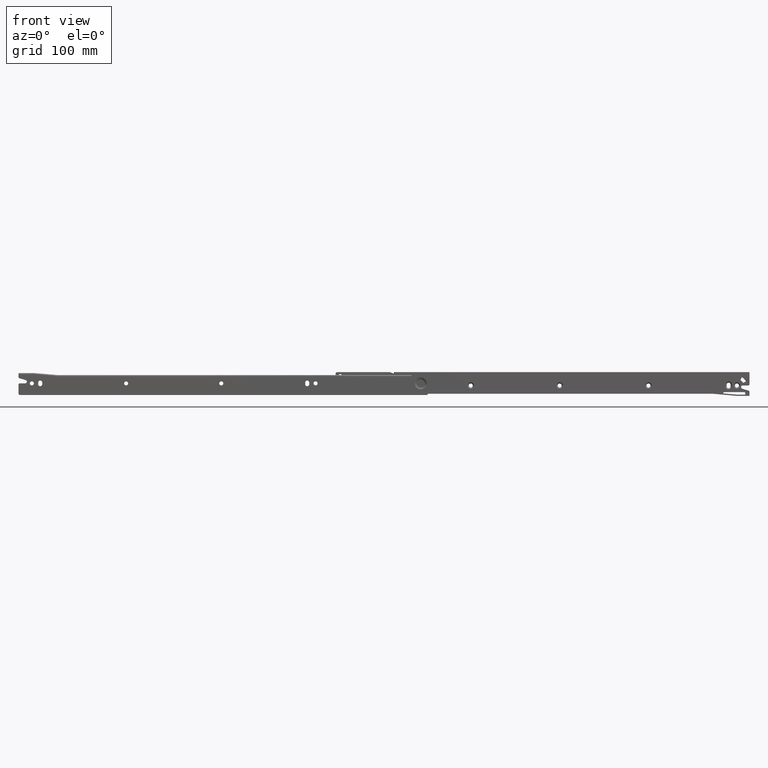
[diagram: clean part render]
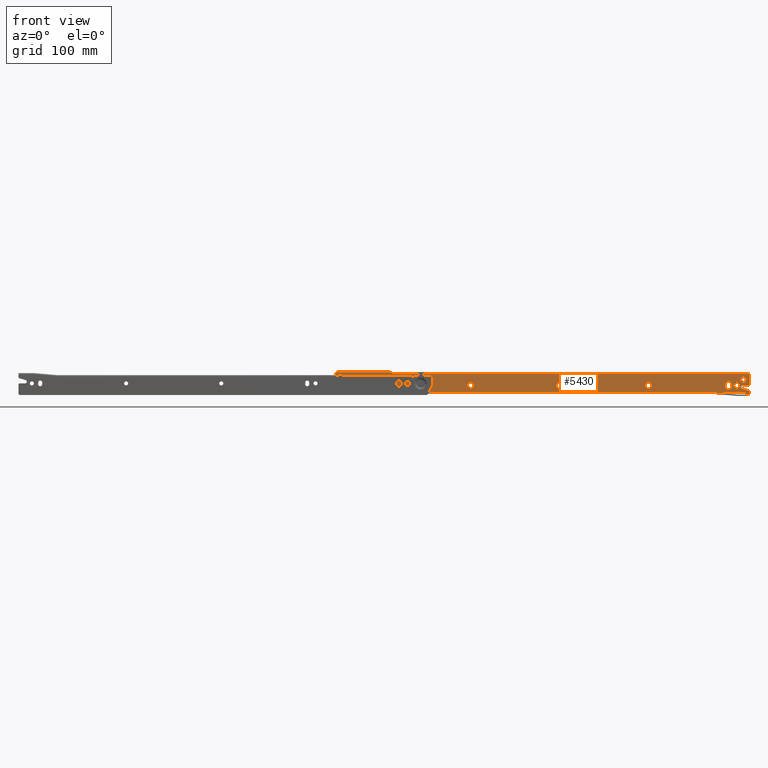
[diagram: same view with one face highlighted and labeled with its STEP entity id]
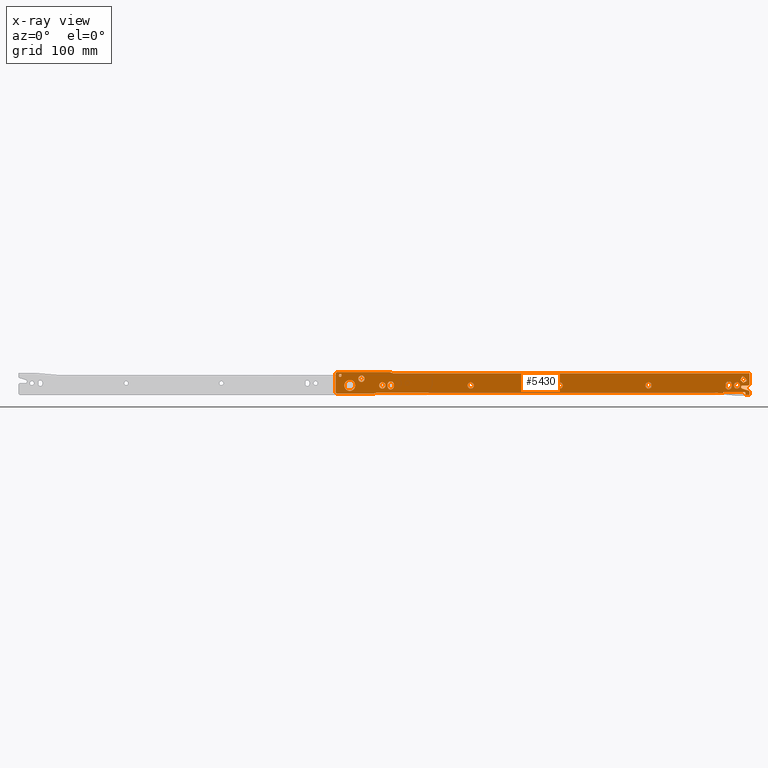
[diagram: x-ray of the same camera — body ghosted, the highlighted face saturated]
A machine part, front view. The second image highlights one B-rep face of the part: STEP entity #5430.
The next image is the same camera in x-ray: the body ghosted, the highlighted face saturated — about 0% of this face is hidden behind the body in this view.
In plain terms, the highlighted face is a freeform B-spline surface patch.
Its self-contained STEP definition (entity closure, byte-faithful):
#738=CARTESIAN_POINT('',(376.279001698154790,10.999999998562380,11.034519981772331));
#739=VERTEX_POINT('',#738);
#745=CARTESIAN_POINT('',(380.0,11.0,7.750000000000000));
#746=VERTEX_POINT('',#745);
#747=CARTESIAN_POINT('',(380.0,11.0,7.750000000000000));
#748=CARTESIAN_POINT('',(376.689880267846830,10.999999999999998,7.750000000000000));
#749=CARTESIAN_POINT('',(376.279001698154840,10.999999998562382,11.034519981772327));
#757=(BOUNDED_CURVE()B_SPLINE_CURVE(2,(#747,#748,#749),.UNSPECIFIED.,.F.,.U.)B_SPLINE_CURVE_WITH_KNOTS((3,3),(0.500000000000000,0.728526070098578),.UNSPECIFIED.)CURVE()GEOMETRIC_REPRESENTATION_ITEM()RATIONAL_B_SPLINE_CURVE((1.0,0.732265054984155,0.954005428468550))REPRESENTATION_ITEM(''));
#758=EDGE_CURVE('',#746,#739,#757,.T.);
#760=CARTESIAN_POINT('',(383.749857212951500,10.999999998259449,11.532724520237350));
#761=VERTEX_POINT('',#760);
#762=CARTESIAN_POINT('',(383.749857212951440,10.999999998259446,11.532724520237348));
#763=CARTESIAN_POINT('',(383.750000000000060,11.000000000000002,11.516362577683099));
#764=CARTESIAN_POINT('',(383.750000000000000,11.0,11.500000000000000));
#765=CARTESIAN_POINT('',(383.750000000000060,11.0,7.750000000000001));
#766=CARTESIAN_POINT('',(380.0,11.0,7.750000000000000));
#774=(BOUNDED_CURVE()B_SPLINE_CURVE(2,(#762,#763,#764,#765,#766),.UNSPECIFIED.,.F.,.U.)B_SPLINE_CURVE_WITH_KNOTS((3,2,3),(0.248460104527813,0.250000000000000,0.500000000000000),.UNSPECIFIED.)CURVE()GEOMETRIC_REPRESENTATION_ITEM()RATIONAL_B_SPLINE_CURVE((0.996414025468606,0.998195900234059,1.0,0.707106781186547,1.0))REPRESENTATION_ITEM(''));
#775=EDGE_CURVE('',#761,#746,#774,.T.);
#855=CARTESIAN_POINT('',(380.0,11.0,15.250000000000000));
#856=VERTEX_POINT('',#855);
#857=CARTESIAN_POINT('',(380.0,11.0,15.250000000000000));
#858=CARTESIAN_POINT('',(383.717417015730180,11.0,15.249999999999998));
#859=CARTESIAN_POINT('',(383.749857212951440,10.999999998259449,11.532724520237352));
#867=(BOUNDED_CURVE()B_SPLINE_CURVE(2,(#857,#858,#859),.UNSPECIFIED.,.F.,.U.)B_SPLINE_CURVE_WITH_KNOTS((3,3),(0.0,0.248460104527813),.UNSPECIFIED.)CURVE()GEOMETRIC_REPRESENTATION_ITEM()RATIONAL_B_SPLINE_CURVE((1.0,0.708910880952489,0.996414025468605))REPRESENTATION_ITEM(''));
#868=EDGE_CURVE('',#856,#761,#867,.T.);
#870=CARTESIAN_POINT('',(376.279001698154840,10.999999998562382,11.034519981772327));
#871=CARTESIAN_POINT('',(376.250000000000060,10.999999999999996,11.266356511361494));
#872=CARTESIAN_POINT('',(376.250000000000110,11.0,11.500000000000000));
#873=CARTESIAN_POINT('',(376.250000000000060,11.0,15.250000000000002));
#874=CARTESIAN_POINT('',(380.0,11.0,15.250000000000000));
#882=(BOUNDED_CURVE()B_SPLINE_CURVE(2,(#870,#871,#872,#873,#874),.UNSPECIFIED.,.F.,.U.)B_SPLINE_CURVE_WITH_KNOTS((3,2,3),(0.728526070098577,0.750000000000000,1.0),.UNSPECIFIED.)CURVE()GEOMETRIC_REPRESENTATION_ITEM()RATIONAL_B_SPLINE_CURVE((0.954005428468548,0.974841726202391,1.0,0.707106781186547,1.0))REPRESENTATION_ITEM(''));
#883=EDGE_CURVE('',#739,#856,#882,.T.);
#924=CARTESIAN_POINT('',(269.779001698154790,10.999999998562361,11.034519981772320));
#925=VERTEX_POINT('',#924);
#931=CARTESIAN_POINT('',(273.500000000000000,11.0,7.750000000000000));
#932=VERTEX_POINT('',#931);
#933=CARTESIAN_POINT('',(273.500000000000000,11.0,7.750000000000000));
#934=CARTESIAN_POINT('',(270.189880267846890,10.999999999999998,7.750000000000000));
#935=CARTESIAN_POINT('',(269.779001698154840,10.999999998562359,11.034519981772323));
#943=(BOUNDED_CURVE()B_SPLINE_CURVE(2,(#933,#934,#935),.UNSPECIFIED.,.F.,.U.)B_SPLINE_CURVE_WITH_KNOTS((3,3),(0.500000000000000,0.728526070098576),.UNSPECIFIED.)CURVE()GEOMETRIC_REPRESENTATION_ITEM()RATIONAL_B_SPLINE_CURVE((1.0,0.732265054984158,0.954005428468545))REPRESENTATION_ITEM(''));
#944=EDGE_CURVE('',#932,#925,#943,.T.);
#946=CARTESIAN_POINT('',(277.249857212951500,10.999999998259460,11.532724520237350));
#947=VERTEX_POINT('',#946);
#948=CARTESIAN_POINT('',(277.249857212951440,10.999999998259458,11.532724520237348));
#949=CARTESIAN_POINT('',(277.250000000000060,11.000000000000002,11.516362577683099));
#950=CARTESIAN_POINT('',(277.250000000000000,11.0,11.500000000000000));
#951=CARTESIAN_POINT('',(277.250000000000000,11.0,7.750000000000001));
#952=CARTESIAN_POINT('',(273.500000000000000,11.0,7.750000000000000));
#960=(BOUNDED_CURVE()B_SPLINE_CURVE(2,(#948,#949,#950,#951,#952),.UNSPECIFIED.,.F.,.U.)B_SPLINE_CURVE_WITH_KNOTS((3,2,3),(0.248460104527813,0.250000000000000,0.500000000000000),.UNSPECIFIED.)CURVE()GEOMETRIC_REPRESENTATION_ITEM()RATIONAL_B_SPLINE_CURVE((0.996414025468606,0.998195900234059,1.0,0.707106781186547,1.0))REPRESENTATION_ITEM(''));
#961=EDGE_CURVE('',#947,#932,#960,.T.);
#1041=CARTESIAN_POINT('',(273.500000000000000,11.0,15.250000000000000));
#1042=VERTEX_POINT('',#1041);
#1043=CARTESIAN_POINT('',(273.500000000000000,11.0,15.250000000000000));
#1044=CARTESIAN_POINT('',(277.217417015730230,11.0,15.249999999999998));
#1045=CARTESIAN_POINT('',(277.249857212951500,10.999999998259460,11.532724520237352));
#1053=(BOUNDED_CURVE()B_SPLINE_CURVE(2,(#1043,#1044,#1045),.UNSPECIFIED.,.F.,.U.)B_SPLINE_CURVE_WITH_KNOTS((3,3),(0.0,0.248460104527813),.UNSPECIFIED.)CURVE()GEOMETRIC_REPRESENTATION_ITEM()RATIONAL_B_SPLINE_CURVE((1.0,0.708910880952489,0.996414025468605))REPRESENTATION_ITEM(''));
#1054=EDGE_CURVE('',#1042,#947,#1053,.T.);
#1056=CARTESIAN_POINT('',(269.779001698154790,10.999999998562361,11.034519981772316));
#1057=CARTESIAN_POINT('',(269.750000000000000,11.000000000000002,11.266356511361490));
#1058=CARTESIAN_POINT('',(269.750000000000110,11.0,11.500000000000000));
#1059=CARTESIAN_POINT('',(269.750000000000060,11.0,15.250000000000002));
#1060=CARTESIAN_POINT('',(273.500000000000000,11.0,15.250000000000000));
#1068=(BOUNDED_CURVE()B_SPLINE_CURVE(2,(#1056,#1057,#1058,#1059,#1060),.UNSPECIFIED.,.F.,.U.)B_SPLINE_CURVE_WITH_KNOTS((3,2,3),(0.728526070098577,0.750000000000000,1.0),.UNSPECIFIED.)CURVE()GEOMETRIC_REPRESENTATION_ITEM()RATIONAL_B_SPLINE_CURVE((0.954005428468547,0.974841726202391,1.0,0.707106781186547,1.0))REPRESENTATION_ITEM(''));
#1069=EDGE_CURVE('',#925,#1042,#1068,.T.);
#1110=CARTESIAN_POINT('',(163.279001698154790,10.999999998562350,11.034519981772320));
#1111=VERTEX_POINT('',#1110);
#1117=CARTESIAN_POINT('',(167.0,11.0,7.750000000000000));
#1118=VERTEX_POINT('',#1117);
#1119=CARTESIAN_POINT('',(167.0,11.0,7.750000000000000));
#1120=CARTESIAN_POINT('',(163.689880267846890,10.999999999999998,7.750000000000000));
#1121=CARTESIAN_POINT('',(163.279001698154790,10.999999998562346,11.034519981772313));
#1129=(BOUNDED_CURVE()B_SPLINE_CURVE(2,(#1119,#1120,#1121),.UNSPECIFIED.,.F.,.U.)B_SPLINE_CURVE_WITH_KNOTS((3,3),(0.500000000000000,0.728526070098576),.UNSPECIFIED.)CURVE()GEOMETRIC_REPRESENTATION_ITEM()RATIONAL_B_SPLINE_CURVE((1.0,0.732265054984158,0.954005428468545))REPRESENTATION_ITEM(''));
#1130=EDGE_CURVE('',#1118,#1111,#1129,.T.);
#1132=CARTESIAN_POINT('',(170.749857212951500,10.999999998259449,11.532724520237350));
#1133=VERTEX_POINT('',#1132);
#1134=CARTESIAN_POINT('',(170.749857212951470,10.999999998259447,11.532724520237348));
#1135=CARTESIAN_POINT('',(170.750000000000030,11.000000000000002,11.516362577683099));
#1136=CARTESIAN_POINT('',(170.750000000000000,11.0,11.500000000000000));
#1137=CARTESIAN_POINT('',(170.750000000000030,11.0,7.750000000000001));
#1138=CARTESIAN_POINT('',(167.0,11.0,7.750000000000000));
#1146=(BOUNDED_CURVE()B_SPLINE_CURVE(2,(#1134,#1135,#1136,#1137,#1138),.UNSPECIFIED.,.F.,.U.)B_SPLINE_CURVE_WITH_KNOTS((3,2,3),(0.248460104527813,0.250000000000000,0.500000000000000),.UNSPECIFIED.)CURVE()GEOMETRIC_REPRESENTATION_ITEM()RATIONAL_B_SPLINE_CURVE((0.996414025468606,0.998195900234059,1.0,0.707106781186547,1.0))REPRESENTATION_ITEM(''));
#1147=EDGE_CURVE('',#1133,#1118,#1146,.T.);
#1227=CARTESIAN_POINT('',(167.0,11.0,15.250000000000000));
#1228=VERTEX_POINT('',#1227);
#1229=CARTESIAN_POINT('',(167.0,11.0,15.250000000000000));
#1230=CARTESIAN_POINT('',(170.717417015730120,11.0,15.249999999999998));
#1231=CARTESIAN_POINT('',(170.749857212951530,10.999999998259449,11.532724520237352));
#1239=(BOUNDED_CURVE()B_SPLINE_CURVE(2,(#1229,#1230,#1231),.UNSPECIFIED.,.F.,.U.)B_SPLINE_CURVE_WITH_KNOTS((3,3),(0.0,0.248460104527813),.UNSPECIFIED.)CURVE()GEOMETRIC_REPRESENTATION_ITEM()RATIONAL_B_SPLINE_CURVE((1.0,0.708910880952489,0.996414025468605))REPRESENTATION_ITEM(''));
#1240=EDGE_CURVE('',#1228,#1133,#1239,.T.);
#1242=CARTESIAN_POINT('',(163.279001698154810,10.999999998562346,11.034519981772323));
#1243=CARTESIAN_POINT('',(163.249999999999970,11.000000000000005,11.266356511361485));
#1244=CARTESIAN_POINT('',(163.250000000000000,11.0,11.500000000000000));
#1245=CARTESIAN_POINT('',(163.250000000000060,11.0,15.250000000000002));
#1246=CARTESIAN_POINT('',(167.0,11.0,15.250000000000000));
#1254=(BOUNDED_CURVE()B_SPLINE_CURVE(2,(#1242,#1243,#1244,#1245,#1246),.UNSPECIFIED.,.F.,.U.)B_SPLINE_CURVE_WITH_KNOTS((3,2,3),(0.728526070098576,0.750000000000000,1.0),.UNSPECIFIED.)CURVE()GEOMETRIC_REPRESENTATION_ITEM()RATIONAL_B_SPLINE_CURVE((0.954005428468546,0.974841726202390,1.0,0.707106781186547,1.0))REPRESENTATION_ITEM(''));
#1255=EDGE_CURVE('',#1111,#1228,#1254,.T.);
#1552=CARTESIAN_POINT('',(15.512123809849671,11.000000000751140,11.103184487389870));
#1553=VERTEX_POINT('',#1552);
#1559=CARTESIAN_POINT('',(22.0,11.0,4.999999999999800));
#1560=VERTEX_POINT('',#1559);
#1561=CARTESIAN_POINT('',(22.0,11.0,4.999999999999800));
#1562=CARTESIAN_POINT('',(15.885410575664876,11.000000000000002,4.999999999999801));
#1563=CARTESIAN_POINT('',(15.512123809849671,11.000000000751143,11.103184487389873));
#1571=(BOUNDED_CURVE()B_SPLINE_CURVE(2,(#1561,#1562,#1563),.UNSPECIFIED.,.F.,.U.)B_SPLINE_CURVE_WITH_KNOTS((3,3),(0.500000000000000,0.739332961944756),.UNSPECIFIED.)CURVE()GEOMETRIC_REPRESENTATION_ITEM()RATIONAL_B_SPLINE_CURVE((1.0,0.719603993631372,0.976072041036219))REPRESENTATION_ITEM(''));
#1572=EDGE_CURVE('',#1560,#1553,#1571,.T.);
#1574=CARTESIAN_POINT('',(22.0,11.0,18.000000000000199));
#1575=VERTEX_POINT('',#1574);
#1576=CARTESIAN_POINT('',(22.0,11.0,18.000000000000199));
#1577=CARTESIAN_POINT('',(28.500000000000206,11.0,18.000000000000206));
#1578=CARTESIAN_POINT('',(28.500000000000199,11.0,11.500000000000000));
#1579=CARTESIAN_POINT('',(28.500000000000206,11.0,4.999999999999802));
#1580=CARTESIAN_POINT('',(22.0,11.0,4.999999999999800));
#1588=(BOUNDED_CURVE()B_SPLINE_CURVE(2,(#1576,#1577,#1578,#1579,#1580),.UNSPECIFIED.,.F.,.U.)B_SPLINE_CURVE_WITH_KNOTS((3,2,3),(0.0,0.250000000000000,0.500000000000000),.UNSPECIFIED.)CURVE()GEOMETRIC_REPRESENTATION_ITEM()RATIONAL_B_SPLINE_CURVE((1.0,0.707106781186547,1.0,0.707106781186547,1.0))REPRESENTATION_ITEM(''));
#1589=EDGE_CURVE('',#1575,#1560,#1588,.T.);
#1591=CARTESIAN_POINT('',(19.714483159913559,11.000000000627940,17.584933260262371));
#1592=VERTEX_POINT('',#1591);
#1593=CARTESIAN_POINT('',(19.714483159913556,11.000000000627942,17.584933260262368));
#1594=CARTESIAN_POINT('',(20.819551983591868,11.000000000000004,18.000000000000206));
#1595=CARTESIAN_POINT('',(22.0,11.0,18.000000000000199));
#1603=(BOUNDED_CURVE()B_SPLINE_CURVE(2,(#1593,#1594,#1595),.UNSPECIFIED.,.F.,.U.)B_SPLINE_CURVE_WITH_KNOTS((3,3),(0.940284170570788,1.0),.UNSPECIFIED.)CURVE()GEOMETRIC_REPRESENTATION_ITEM()RATIONAL_B_SPLINE_CURVE((0.893499554234223,0.930038554017452,1.0))REPRESENTATION_ITEM(''));
#1604=EDGE_CURVE('',#1592,#1575,#1603,.T.);
#1644=CARTESIAN_POINT('',(15.512123809849678,11.000000000751140,11.103184487389870));
#1645=CARTESIAN_POINT('',(15.499999999999799,11.000000000000004,11.301407032955806));
#1646=CARTESIAN_POINT('',(15.499999999999799,11.0,11.500000000000000));
#1647=CARTESIAN_POINT('',(15.499999999999805,11.000000000000002,16.001962362023672));
#1648=CARTESIAN_POINT('',(19.714483159913559,11.000000000627940,17.584933260262371));
#1656=(BOUNDED_CURVE()B_SPLINE_CURVE(2,(#1644,#1645,#1646,#1647,#1648),.UNSPECIFIED.,.F.,.U.)B_SPLINE_CURVE_WITH_KNOTS((3,2,3),(0.739332961944756,0.750000000000000,0.940284170570788),.UNSPECIFIED.)CURVE()GEOMETRIC_REPRESENTATION_ITEM()RATIONAL_B_SPLINE_CURVE((0.976072041036219,0.987502787555176,1.0,0.777068227169095,0.893499554234223))REPRESENTATION_ITEM(''));
#1657=EDGE_CURVE('',#1553,#1592,#1656,.T.);
#1698=CARTESIAN_POINT('',(57.279001698154772,10.999999998562350,11.034519981772320));
#1699=VERTEX_POINT('',#1698);
#1705=CARTESIAN_POINT('',(61.0,11.0,7.750000000000000));
#1706=VERTEX_POINT('',#1705);
#1707=CARTESIAN_POINT('',(61.0,11.0,7.750000000000000));
#1708=CARTESIAN_POINT('',(57.689880267846910,10.999999999999998,7.750000000000000));
#1709=CARTESIAN_POINT('',(57.279001698154779,10.999999998562346,11.034519981772313));
#1717=(BOUNDED_CURVE()B_SPLINE_CURVE(2,(#1707,#1708,#1709),.UNSPECIFIED.,.F.,.U.)B_SPLINE_CURVE_WITH_KNOTS((3,3),(0.500000000000000,0.728526070098576),.UNSPECIFIED.)CURVE()GEOMETRIC_REPRESENTATION_ITEM()RATIONAL_B_SPLINE_CURVE((1.0,0.732265054984158,0.954005428468545))REPRESENTATION_ITEM(''));
#1718=EDGE_CURVE('',#1706,#1699,#1717,.T.);
#1720=CARTESIAN_POINT('',(64.749857212951454,10.999999998259449,11.532724520237350));
#1721=VERTEX_POINT('',#1720);
#1722=CARTESIAN_POINT('',(64.749857212951454,10.999999998259449,11.532724520237352));
#1723=CARTESIAN_POINT('',(64.750000000000000,11.000000000000002,11.516362577683100));
#1724=CARTESIAN_POINT('',(64.750000000000000,11.0,11.500000000000000));
#1725=CARTESIAN_POINT('',(64.750000000000000,11.0,7.750000000000001));
#1726=CARTESIAN_POINT('',(61.0,11.0,7.750000000000000));
#1734=(BOUNDED_CURVE()B_SPLINE_CURVE(2,(#1722,#1723,#1724,#1725,#1726),.UNSPECIFIED.,.F.,.U.)B_SPLINE_CURVE_WITH_KNOTS((3,2,3),(0.248460104527812,0.250000000000000,0.500000000000000),.UNSPECIFIED.)CURVE()GEOMETRIC_REPRESENTATION_ITEM()RATIONAL_B_SPLINE_CURVE((0.996414025468605,0.998195900234059,1.0,0.707106781186547,1.0))REPRESENTATION_ITEM(''));
#1735=EDGE_CURVE('',#1721,#1706,#1734,.T.);
#1815=CARTESIAN_POINT('',(61.0,11.0,15.250000000000000));
#1816=VERTEX_POINT('',#1815);
#1817=CARTESIAN_POINT('',(61.0,11.0,15.250000000000000));
#1818=CARTESIAN_POINT('',(64.717417015730135,11.0,15.249999999999996));
#1819=CARTESIAN_POINT('',(64.749857212951454,10.999999998259453,11.532724520237354));
#1827=(BOUNDED_CURVE()B_SPLINE_CURVE(2,(#1817,#1818,#1819),.UNSPECIFIED.,.F.,.U.)B_SPLINE_CURVE_WITH_KNOTS((3,3),(0.0,0.248460104527812),.UNSPECIFIED.)CURVE()GEOMETRIC_REPRESENTATION_ITEM()RATIONAL_B_SPLINE_CURVE((1.0,0.708910880952489,0.996414025468605))REPRESENTATION_ITEM(''));
#1828=EDGE_CURVE('',#1816,#1721,#1827,.T.);
#1830=CARTESIAN_POINT('',(57.279001698154772,10.999999998562345,11.034519981772322));
#1831=CARTESIAN_POINT('',(57.249999999999993,11.000000000000005,11.266356511361483));
#1832=CARTESIAN_POINT('',(57.249999999999993,11.0,11.500000000000000));
#1833=CARTESIAN_POINT('',(57.249999999999993,11.0,15.250000000000002));
#1834=CARTESIAN_POINT('',(61.0,11.0,15.250000000000000));
#1842=(BOUNDED_CURVE()B_SPLINE_CURVE(2,(#1830,#1831,#1832,#1833,#1834),.UNSPECIFIED.,.F.,.U.)B_SPLINE_CURVE_WITH_KNOTS((3,2,3),(0.728526070098577,0.750000000000000,1.0),.UNSPECIFIED.)CURVE()GEOMETRIC_REPRESENTATION_ITEM()RATIONAL_B_SPLINE_CURVE((0.954005428468546,0.974841726202391,1.0,0.707106781186547,1.0))REPRESENTATION_ITEM(''));
#1843=EDGE_CURVE('',#1699,#1816,#1842,.T.);
#1884=CARTESIAN_POINT('',(32.279001698154772,10.999999998562350,19.034519981772320));
#1885=VERTEX_POINT('',#1884);
#1891=CARTESIAN_POINT('',(36.0,11.0,15.750000000000000));
#1892=VERTEX_POINT('',#1891);
#1893=CARTESIAN_POINT('',(36.0,11.0,15.750000000000000));
#1894=CARTESIAN_POINT('',(32.689880267846910,10.999999999999998,15.750000000000009));
#1895=CARTESIAN_POINT('',(32.279001698154779,10.999999998562359,19.034519981772320));
#1903=(BOUNDED_CURVE()B_SPLINE_CURVE(2,(#1893,#1894,#1895),.UNSPECIFIED.,.F.,.U.)B_SPLINE_CURVE_WITH_KNOTS((3,3),(0.500000000000000,0.728526070098576),.UNSPECIFIED.)CURVE()GEOMETRIC_REPRESENTATION_ITEM()RATIONAL_B_SPLINE_CURVE((1.0,0.732265054984158,0.954005428468545))REPRESENTATION_ITEM(''));
#1904=EDGE_CURVE('',#1892,#1885,#1903,.T.);
#1906=CARTESIAN_POINT('',(39.749857212951447,10.999999998259460,19.532724520237348));
#1907=VERTEX_POINT('',#1906);
#1908=CARTESIAN_POINT('',(39.749857212951454,10.999999998259460,19.532724520237348));
#1909=CARTESIAN_POINT('',(39.750000000000000,11.000000000000002,19.516362577683100));
#1910=CARTESIAN_POINT('',(39.749999999999993,11.0,19.500000000000000));
#1911=CARTESIAN_POINT('',(39.750000000000000,11.0,15.749999999999995));
#1912=CARTESIAN_POINT('',(36.0,11.0,15.750000000000000));
#1920=(BOUNDED_CURVE()B_SPLINE_CURVE(2,(#1908,#1909,#1910,#1911,#1912),.UNSPECIFIED.,.F.,.U.)B_SPLINE_CURVE_WITH_KNOTS((3,2,3),(0.248460104527813,0.250000000000000,0.500000000000000),.UNSPECIFIED.)CURVE()GEOMETRIC_REPRESENTATION_ITEM()RATIONAL_B_SPLINE_CURVE((0.996414025468605,0.998195900234059,1.0,0.707106781186547,1.0))REPRESENTATION_ITEM(''));
#1921=EDGE_CURVE('',#1907,#1892,#1920,.T.);
#2001=CARTESIAN_POINT('',(36.0,11.0,23.250000000000000));
#2002=VERTEX_POINT('',#2001);
#2003=CARTESIAN_POINT('',(36.0,11.0,23.250000000000000));
#2004=CARTESIAN_POINT('',(39.717417015730121,11.000000000000002,23.250000000000000));
#2005=CARTESIAN_POINT('',(39.749857212951454,10.999999998259460,19.532724520237348));
#2013=(BOUNDED_CURVE()B_SPLINE_CURVE(2,(#2003,#2004,#2005),.UNSPECIFIED.,.F.,.U.)B_SPLINE_CURVE_WITH_KNOTS((3,3),(0.0,0.248460104527812),.UNSPECIFIED.)CURVE()GEOMETRIC_REPRESENTATION_ITEM()RATIONAL_B_SPLINE_CURVE((1.0,0.708910880952489,0.996414025468605))REPRESENTATION_ITEM(''));
#2014=EDGE_CURVE('',#2002,#1907,#2013,.T.);
#2016=CARTESIAN_POINT('',(32.279001698154772,10.999999998562357,19.034519981772320));
#2017=CARTESIAN_POINT('',(32.249999999999993,11.000000000000005,19.266356511361490));
#2018=CARTESIAN_POINT('',(32.250000000000000,11.0,19.500000000000000));
#2019=CARTESIAN_POINT('',(32.250000000000007,11.0,23.250000000000004));
#2020=CARTESIAN_POINT('',(36.0,11.0,23.250000000000000));
#2028=(BOUNDED_CURVE()B_SPLINE_CURVE(2,(#2016,#2017,#2018,#2019,#2020),.UNSPECIFIED.,.F.,.U.)B_SPLINE_CURVE_WITH_KNOTS((3,2,3),(0.728526070098577,0.750000000000000,1.0),.UNSPECIFIED.)CURVE()GEOMETRIC_REPRESENTATION_ITEM()RATIONAL_B_SPLINE_CURVE((0.954005428468546,0.974841726202391,1.0,0.707106781186547,1.0))REPRESENTATION_ITEM(''));
#2029=EDGE_CURVE('',#1885,#2002,#2028,.T.);
#2076=CARTESIAN_POINT('',(8.812233329449512,11.0,23.656559915578669));
#2077=VERTEX_POINT('',#2076);
#2083=CARTESIAN_POINT('',(10.550000000000001,11.0,21.699999999999999));
#2084=VERTEX_POINT('',#2083);
#2085=CARTESIAN_POINT('',(8.812233329449512,11.000000000000002,23.656559915578672));
#2086=CARTESIAN_POINT('',(8.799999999999999,11.000000000000005,23.553642214372292));
#2087=CARTESIAN_POINT('',(8.800000000000001,11.0,23.449999999999999));
#2088=CARTESIAN_POINT('',(8.800000000000001,11.0,21.699999999999999));
#2089=CARTESIAN_POINT('',(10.550000000000001,11.0,21.699999999999999));
#2097=(BOUNDED_CURVE()B_SPLINE_CURVE(2,(#2085,#2086,#2087,#2088,#2089),.UNSPECIFIED.,.F.,.U.)B_SPLINE_CURVE_WITH_KNOTS((3,2,3),(0.229562472556857,0.250000000000000,0.500000000000000),.UNSPECIFIED.)CURVE()GEOMETRIC_REPRESENTATION_ITEM()RATIONAL_B_SPLINE_CURVE((0.956026752308623,0.976055947210358,1.0,0.707106781186547,1.0))REPRESENTATION_ITEM(''));
#2098=EDGE_CURVE('',#2077,#2084,#2097,.T.);
#2100=CARTESIAN_POINT('',(12.296735897237699,11.0,23.343165055804629));
#2101=VERTEX_POINT('',#2100);
#2102=CARTESIAN_POINT('',(10.550000000000001,11.0,21.699999999999999));
#2103=CARTESIAN_POINT('',(12.196235617067275,11.000000000000002,21.700000000000003));
#2104=CARTESIAN_POINT('',(12.296735897237697,11.000000000000005,23.343165055804633));
#2112=(BOUNDED_CURVE()B_SPLINE_CURVE(2,(#2102,#2103,#2104),.UNSPECIFIED.,.F.,.U.)B_SPLINE_CURVE_WITH_KNOTS((3,3),(0.500000000000000,0.739332962240117),.UNSPECIFIED.)CURVE()GEOMETRIC_REPRESENTATION_ITEM()RATIONAL_B_SPLINE_CURVE((1.0,0.719603993285334,0.976072041669235))REPRESENTATION_ITEM(''));
#2113=EDGE_CURVE('',#2084,#2101,#2112,.T.);
#2187=CARTESIAN_POINT('',(10.550000000000001,11.0,25.199999999999999));
#2188=VERTEX_POINT('',#2187);
#2189=CARTESIAN_POINT('',(12.296735897237701,11.0,23.343165055804633));
#2190=CARTESIAN_POINT('',(12.300000000000001,11.0,23.396532664218075));
#2191=CARTESIAN_POINT('',(12.300000000000001,11.0,23.449999999999999));
#2192=CARTESIAN_POINT('',(12.300000000000002,11.0,25.200000000000006));
#2193=CARTESIAN_POINT('',(10.550000000000001,11.0,25.199999999999999));
#2201=(BOUNDED_CURVE()B_SPLINE_CURVE(2,(#2189,#2190,#2191,#2192,#2193),.UNSPECIFIED.,.F.,.U.)B_SPLINE_CURVE_WITH_KNOTS((3,2,3),(0.739332962240118,0.750000000000000,1.0),.UNSPECIFIED.)CURVE()GEOMETRIC_REPRESENTATION_ITEM()RATIONAL_B_SPLINE_CURVE((0.976072041669235,0.987502787901214,1.0,0.707106781186547,1.0))REPRESENTATION_ITEM(''));
#2202=EDGE_CURVE('',#2101,#2188,#2201,.T.);
#2204=CARTESIAN_POINT('',(10.550000000000001,11.0,25.199999999999999));
#2205=CARTESIAN_POINT('',(8.995694588465053,11.0,25.200000000000006));
#2206=CARTESIAN_POINT('',(8.812233329449514,10.999999999999998,23.656559915578676));
#2214=(BOUNDED_CURVE()B_SPLINE_CURVE(2,(#2204,#2205,#2206),.UNSPECIFIED.,.F.,.U.)B_SPLINE_CURVE_WITH_KNOTS((3,3),(0.0,0.229562472556857),.UNSPECIFIED.)CURVE()GEOMETRIC_REPRESENTATION_ITEM()RATIONAL_B_SPLINE_CURVE((1.0,0.731050833976190,0.956026752308623))REPRESENTATION_ITEM(''));
#2215=EDGE_CURVE('',#2188,#2077,#2214,.T.);
#2256=CARTESIAN_POINT('',(482.279001698154670,10.999999998562339,11.034519981772320));
#2257=VERTEX_POINT('',#2256);
#2263=CARTESIAN_POINT('',(486.0,11.0,7.750000000000000));
#2264=VERTEX_POINT('',#2263);
#2265=CARTESIAN_POINT('',(486.0,11.0,7.750000000000000));
#2266=CARTESIAN_POINT('',(482.689880267846890,10.999999999999998,7.750000000000000));
#2267=CARTESIAN_POINT('',(482.279001698154790,10.999999998562338,11.034519981772323));
#2275=(BOUNDED_CURVE()B_SPLINE_CURVE(2,(#2265,#2266,#2267),.UNSPECIFIED.,.F.,.U.)B_SPLINE_CURVE_WITH_KNOTS((3,3),(0.500000000000000,0.728526070098576),.UNSPECIFIED.)CURVE()GEOMETRIC_REPRESENTATION_ITEM()RATIONAL_B_SPLINE_CURVE((1.0,0.732265054984158,0.954005428468545))REPRESENTATION_ITEM(''));
#2276=EDGE_CURVE('',#2264,#2257,#2275,.T.);
#2278=CARTESIAN_POINT('',(489.749857212951380,10.999999998259460,11.532724520237350));
#2279=VERTEX_POINT('',#2278);
#2280=CARTESIAN_POINT('',(489.749857212951440,10.999999998259465,11.532724520237348));
#2281=CARTESIAN_POINT('',(489.750000000000000,11.000000000000002,11.516362577683099));
#2282=CARTESIAN_POINT('',(489.749999999999890,11.0,11.500000000000000));
#2283=CARTESIAN_POINT('',(489.749999999999940,11.0,7.750000000000001));
#2284=CARTESIAN_POINT('',(486.0,11.0,7.750000000000000));
#2292=(BOUNDED_CURVE()B_SPLINE_CURVE(2,(#2280,#2281,#2282,#2283,#2284),.UNSPECIFIED.,.F.,.U.)B_SPLINE_CURVE_WITH_KNOTS((3,2,3),(0.248460104527813,0.250000000000000,0.500000000000000),.UNSPECIFIED.)CURVE()GEOMETRIC_REPRESENTATION_ITEM()RATIONAL_B_SPLINE_CURVE((0.996414025468606,0.998195900234059,1.0,0.707106781186547,1.0))REPRESENTATION_ITEM(''));
#2293=EDGE_CURVE('',#2279,#2264,#2292,.T.);
#2373=CARTESIAN_POINT('',(486.0,11.0,15.250000000000000));
#2374=VERTEX_POINT('',#2373);
#2375=CARTESIAN_POINT('',(486.0,11.0,15.250000000000000));
#2376=CARTESIAN_POINT('',(489.717417015730060,11.0,15.249999999999998));
#2377=CARTESIAN_POINT('',(489.749857212951500,10.999999998259460,11.532724520237352));
#2385=(BOUNDED_CURVE()B_SPLINE_CURVE(2,(#2375,#2376,#2377),.UNSPECIFIED.,.F.,.U.)B_SPLINE_CURVE_WITH_KNOTS((3,3),(0.0,0.248460104527813),.UNSPECIFIED.)CURVE()GEOMETRIC_REPRESENTATION_ITEM()RATIONAL_B_SPLINE_CURVE((1.0,0.708910880952489,0.996414025468605))REPRESENTATION_ITEM(''));
#2386=EDGE_CURVE('',#2374,#2279,#2385,.T.);
#2388=CARTESIAN_POINT('',(482.279001698154670,10.999999998562345,11.034519981772322));
#2389=CARTESIAN_POINT('',(482.250000000000000,11.000000000000005,11.266356511361483));
#2390=CARTESIAN_POINT('',(482.250000000000000,11.0,11.500000000000000));
#2391=CARTESIAN_POINT('',(482.249999999999940,11.0,15.250000000000002));
#2392=CARTESIAN_POINT('',(486.0,11.0,15.250000000000000));
#2400=(BOUNDED_CURVE()B_SPLINE_CURVE(2,(#2388,#2389,#2390,#2391,#2392),.UNSPECIFIED.,.F.,.U.)B_SPLINE_CURVE_WITH_KNOTS((3,2,3),(0.728526070098577,0.750000000000000,1.0),.UNSPECIFIED.)CURVE()GEOMETRIC_REPRESENTATION_ITEM()RATIONAL_B_SPLINE_CURVE((0.954005428468546,0.974841726202391,1.0,0.707106781186547,1.0))REPRESENTATION_ITEM(''));
#2401=EDGE_CURVE('',#2257,#2374,#2400,.T.);
#2928=CARTESIAN_POINT('',(67.250000000000000,11.0,10.500000000000000));
#2929=VERTEX_POINT('',#2928);
#2944=CARTESIAN_POINT('',(67.250000000000000,11.0,12.500000000000000));
#2945=VERTEX_POINT('',#2944);
#2951=CARTESIAN_POINT('',(67.250000000000000,11.0,10.500000000000000));
#2952=CARTESIAN_POINT('',(67.250000000000000,11.0,12.500000000000000));
#2953=QUASI_UNIFORM_CURVE('',1,(#2951,#2952),.UNSPECIFIED.,.F.,.U.);
#2954=EDGE_CURVE('',#2929,#2945,#2953,.T.);
#2979=CARTESIAN_POINT('',(74.750000000000000,11.0,12.500000000000000));
#2980=VERTEX_POINT('',#2979);
#2986=CARTESIAN_POINT('',(67.249999999999986,11.0,12.500000000000000));
#2987=CARTESIAN_POINT('',(67.249999999999986,11.0,16.250000000000004));
#2988=CARTESIAN_POINT('',(71.0,11.0,16.250000000000000));
#2989=CARTESIAN_POINT('',(74.750000000000000,11.0,16.250000000000004));
#2990=CARTESIAN_POINT('',(74.750000000000000,11.0,12.500000000000000));
#2998=(BOUNDED_CURVE()B_SPLINE_CURVE(2,(#2986,#2987,#2988,#2989,#2990),.UNSPECIFIED.,.F.,.U.)B_SPLINE_CURVE_WITH_KNOTS((3,2,3),(0.0,0.500000000000000,1.0),.UNSPECIFIED.)CURVE()GEOMETRIC_REPRESENTATION_ITEM()RATIONAL_B_SPLINE_CURVE((1.0,0.707106781186547,1.0,0.707106781186547,1.0))REPRESENTATION_ITEM(''));
#2999=EDGE_CURVE('',#2945,#2980,#2998,.T.);
#3038=CARTESIAN_POINT('',(74.750000000000000,11.0,10.500000000000000));
#3039=VERTEX_POINT('',#3038);
#3063=CARTESIAN_POINT('',(74.750000000000000,11.0,10.500000000000000));
#3064=CARTESIAN_POINT('',(74.750000000000000,11.0,6.750000000000001));
#3065=CARTESIAN_POINT('',(71.0,11.0,6.750000000000001));
#3066=CARTESIAN_POINT('',(67.249999999999986,11.0,6.750000000000001));
#3067=CARTESIAN_POINT('',(67.249999999999986,11.0,10.500000000000000));
#3075=(BOUNDED_CURVE()B_SPLINE_CURVE(2,(#3063,#3064,#3065,#3066,#3067),.UNSPECIFIED.,.F.,.U.)B_SPLINE_CURVE_WITH_KNOTS((3,2,3),(0.0,0.500000000000000,1.0),.UNSPECIFIED.)CURVE()GEOMETRIC_REPRESENTATION_ITEM()RATIONAL_B_SPLINE_CURVE((1.0,0.707106781186547,1.0,0.707106781186547,1.0))REPRESENTATION_ITEM(''));
#3076=EDGE_CURVE('',#3039,#2929,#3075,.T.);
#3093=CARTESIAN_POINT('',(74.750000000000000,11.0,12.500000000000000));
#3094=CARTESIAN_POINT('',(74.750000000000000,11.0,10.500000000000000));
#3095=QUASI_UNIFORM_CURVE('',1,(#3093,#3094),.UNSPECIFIED.,.F.,.U.);
#3096=EDGE_CURVE('',#2980,#3039,#3095,.T.);
#3115=CARTESIAN_POINT('',(74.0,11.0,26.0));
#3116=VERTEX_POINT('',#3115);
#3122=CARTESIAN_POINT('',(75.0,11.0,26.0));
#3123=VERTEX_POINT('',#3122);
#3124=CARTESIAN_POINT('',(75.0,11.0,26.0));
#3125=CARTESIAN_POINT('',(74.0,11.0,26.0));
#3126=QUASI_UNIFORM_CURVE('',1,(#3124,#3125),.UNSPECIFIED.,.F.,.U.);
#3127=EDGE_CURVE('',#3123,#3116,#3126,.T.);
#3150=CARTESIAN_POINT('',(55.500000000000000,11.0,3.0));
#3151=VERTEX_POINT('',#3150);
#3193=CARTESIAN_POINT('',(54.500000000000000,11.0,3.0));
#3194=VERTEX_POINT('',#3193);
#3195=CARTESIAN_POINT('',(54.500000000000000,11.0,3.0));
#3196=CARTESIAN_POINT('',(55.500000000000000,11.0,3.0));
#3197=QUASI_UNIFORM_CURVE('',1,(#3195,#3196),.UNSPECIFIED.,.F.,.U.);
#3198=EDGE_CURVE('',#3194,#3151,#3197,.T.);
#3221=CARTESIAN_POINT('',(50.500000000000000,11.0,1.500000000000000));
#3222=VERTEX_POINT('',#3221);
#3223=CARTESIAN_POINT('',(50.500000000000000,11.0,1.500000000000000));
#3224=CARTESIAN_POINT('',(54.500000000000000,11.0,3.0));
#3225=QUASI_UNIFORM_CURVE('',1,(#3223,#3224),.UNSPECIFIED.,.F.,.U.);
#3226=EDGE_CURVE('',#3222,#3194,#3225,.T.);
#3249=CARTESIAN_POINT('',(7.0,11.0,1.500000000000000));
#3250=VERTEX_POINT('',#3249);
#3251=CARTESIAN_POINT('',(7.0,11.0,1.500000000000000));
#3252=CARTESIAN_POINT('',(50.500000000000000,11.0,1.500000000000000));
#3253=QUASI_UNIFORM_CURVE('',1,(#3251,#3252),.UNSPECIFIED.,.F.,.U.);
#3254=EDGE_CURVE('',#3250,#3222,#3253,.T.);
#3294=CARTESIAN_POINT('',(5.0,11.0,3.500000000000000));
#3295=VERTEX_POINT('',#3294);
#3296=CARTESIAN_POINT('',(5.0,11.0,3.500000000000000));
#3297=CARTESIAN_POINT('',(5.000000000000001,11.0,1.500000000000000));
#3298=CARTESIAN_POINT('',(7.0,11.0,1.500000000000000));
#3306=(BOUNDED_CURVE()B_SPLINE_CURVE(2,(#3296,#3297,#3298),.UNSPECIFIED.,.F.,.U.)CURVE()GEOMETRIC_REPRESENTATION_ITEM()QUASI_UNIFORM_CURVE()RATIONAL_B_SPLINE_CURVE((1.0,0.707106781186548,1.0))REPRESENTATION_ITEM(''));
#3307=EDGE_CURVE('',#3295,#3250,#3306,.T.);
#3330=CARTESIAN_POINT('',(5.0,11.0,25.500000000000000));
#3331=VERTEX_POINT('',#3330);
#3332=CARTESIAN_POINT('',(5.0,11.0,25.500000000000000));
#3333=CARTESIAN_POINT('',(5.0,11.0,3.500000000000000));
#3334=QUASI_UNIFORM_CURVE('',1,(#3332,#3333),.UNSPECIFIED.,.F.,.U.);
#3335=EDGE_CURVE('',#3331,#3295,#3334,.T.);
#3375=CARTESIAN_POINT('',(7.0,11.0,27.500000000000000));
#3376=VERTEX_POINT('',#3375);
#3377=CARTESIAN_POINT('',(7.0,11.0,27.500000000000000));
#3378=CARTESIAN_POINT('',(5.000000000000001,11.0,27.500000000000004));
#3379=CARTESIAN_POINT('',(5.0,11.0,25.500000000000000));
#3387=(BOUNDED_CURVE()B_SPLINE_CURVE(2,(#3377,#3378,#3379),.UNSPECIFIED.,.F.,.U.)CURVE()GEOMETRIC_REPRESENTATION_ITEM()QUASI_UNIFORM_CURVE()RATIONAL_B_SPLINE_CURVE((1.0,0.707106781186548,1.0))REPRESENTATION_ITEM(''));
#3388=EDGE_CURVE('',#3376,#3331,#3387,.T.);
#3411=CARTESIAN_POINT('',(70.0,11.0,27.500000000000000));
#3412=VERTEX_POINT('',#3411);
#3413=CARTESIAN_POINT('',(70.0,11.0,27.500000000000000));
#3414=CARTESIAN_POINT('',(7.0,11.0,27.500000000000000));
#3415=QUASI_UNIFORM_CURVE('',1,(#3413,#3414),.UNSPECIFIED.,.F.,.U.);
#3416=EDGE_CURVE('',#3412,#3376,#3415,.T.);
#3437=CARTESIAN_POINT('',(74.0,11.0,26.0));
#3438=CARTESIAN_POINT('',(70.0,11.0,27.500000000000000));
#3439=QUASI_UNIFORM_CURVE('',1,(#3437,#3438),.UNSPECIFIED.,.F.,.U.);
#3440=EDGE_CURVE('',#3116,#3412,#3439,.T.);
#3463=CARTESIAN_POINT('',(496.858194938332020,11.0,16.380163169182250));
#3464=VERTEX_POINT('',#3463);
#3480=CARTESIAN_POINT('',(491.880163169182030,11.0,21.358194938332101));
#3481=VERTEX_POINT('',#3480);
#3555=CARTESIAN_POINT('',(492.545639999999990,11.0,22.702494000000002));
#3556=VERTEX_POINT('',#3555);
#3570=CARTESIAN_POINT('',(492.545639999999990,11.0,22.702494000000002));
#3571=CARTESIAN_POINT('',(491.880163169182030,11.0,21.358194938332101));
#3572=QUASI_UNIFORM_CURVE('',1,(#3570,#3571),.UNSPECIFIED.,.F.,.U.);
#3573=EDGE_CURVE('',#3556,#3481,#3572,.T.);
#3585=CARTESIAN_POINT('',(498.202494248104980,11.0,17.045639964979799));
#3586=VERTEX_POINT('',#3585);
#3620=CARTESIAN_POINT('',(498.202494248104980,11.0,17.045639964979799));
#3621=CARTESIAN_POINT('',(496.858194938332020,11.0,16.380163169182250));
#3622=QUASI_UNIFORM_CURVE('',1,(#3620,#3621),.UNSPECIFIED.,.F.,.U.);
#3623=EDGE_CURVE('',#3586,#3464,#3622,.T.);
#3678=CARTESIAN_POINT('',(492.545639999999990,11.0,22.702494000000002));
#3679=CARTESIAN_POINT('',(496.329397447951070,11.000000000000004,20.829397342374197));
#3680=CARTESIAN_POINT('',(498.202494248104810,11.0,17.045639964979689));
#3688=(BOUNDED_CURVE()B_SPLINE_CURVE(2,(#3678,#3679,#3680),.UNSPECIFIED.,.F.,.U.)CURVE()GEOMETRIC_REPRESENTATION_ITEM()QUASI_UNIFORM_CURVE()RATIONAL_B_SPLINE_CURVE((1.0,0.947417543754206,1.0))REPRESENTATION_ITEM(''));
#3689=EDGE_CURVE('',#3556,#3586,#3688,.T.);
#4100=CARTESIAN_POINT('',(496.0,11.0,2.0));
#4101=VERTEX_POINT('',#4100);
#4102=CARTESIAN_POINT('',(494.500000000000000,11.0,3.500000000000000));
#4103=VERTEX_POINT('',#4102);
#4104=CARTESIAN_POINT('',(496.0,11.0,2.0));
#4105=CARTESIAN_POINT('',(496.000000000000060,11.0,3.499999999999999));
#4106=CARTESIAN_POINT('',(494.500000000000000,11.0,3.500000000000000));
#4114=(BOUNDED_CURVE()B_SPLINE_CURVE(2,(#4104,#4105,#4106),.UNSPECIFIED.,.F.,.U.)CURVE()GEOMETRIC_REPRESENTATION_ITEM()QUASI_UNIFORM_CURVE()RATIONAL_B_SPLINE_CURVE((1.0,0.707106781186548,1.0))REPRESENTATION_ITEM(''));
#4115=EDGE_CURVE('',#4101,#4103,#4114,.T.);
#4164=CARTESIAN_POINT('',(496.0,11.0,0.500000000000000));
#4165=VERTEX_POINT('',#4164);
#4171=CARTESIAN_POINT('',(496.0,11.0,0.500000000000000));
#4172=CARTESIAN_POINT('',(496.0,11.0,2.0));
#4173=QUASI_UNIFORM_CURVE('',1,(#4171,#4172),.UNSPECIFIED.,.F.,.U.);
#4174=EDGE_CURVE('',#4165,#4101,#4173,.T.);
#4198=CARTESIAN_POINT('',(469.500000000000000,11.0,2.0));
#4199=VERTEX_POINT('',#4198);
#4205=CARTESIAN_POINT('',(469.500000000000000,11.0,1.979181339285710));
#4206=VERTEX_POINT('',#4205);
#4207=CARTESIAN_POINT('',(469.500000000000000,11.0,2.0));
#4208=CARTESIAN_POINT('',(469.500000000000000,11.0,1.979181339285710));
#4209=QUASI_UNIFORM_CURVE('',1,(#4207,#4208),.UNSPECIFIED.,.F.,.U.);
#4210=EDGE_CURVE('',#4199,#4206,#4209,.T.);
#4235=CARTESIAN_POINT('',(471.0,11.0,3.500000000000000));
#4236=VERTEX_POINT('',#4235);
#4237=CARTESIAN_POINT('',(471.0,11.0,3.500000000000000));
#4238=CARTESIAN_POINT('',(469.500000000000000,11.0,3.499999999999999));
#4239=CARTESIAN_POINT('',(469.500000000000000,11.0,2.0));
#4247=(BOUNDED_CURVE()B_SPLINE_CURVE(2,(#4237,#4238,#4239),.UNSPECIFIED.,.F.,.U.)CURVE()GEOMETRIC_REPRESENTATION_ITEM()QUASI_UNIFORM_CURVE()RATIONAL_B_SPLINE_CURVE((1.0,0.707106781186548,1.0))REPRESENTATION_ITEM(''));
#4248=EDGE_CURVE('',#4236,#4199,#4247,.T.);
#4279=CARTESIAN_POINT('',(494.500000000000000,11.0,3.500000000000000));
#4280=CARTESIAN_POINT('',(471.0,11.0,3.500000000000000));
#4281=QUASI_UNIFORM_CURVE('',1,(#4279,#4280),.UNSPECIFIED.,.F.,.U.);
#4282=EDGE_CURVE('',#4103,#4236,#4281,.T.);
#4423=CARTESIAN_POINT('',(472.250000000000000,11.0,12.500000000000000));
#4424=VERTEX_POINT('',#4423);
#4430=CARTESIAN_POINT('',(472.250000000000000,11.0,10.500000000000000));
#4431=VERTEX_POINT('',#4430);
#4432=CARTESIAN_POINT('',(472.250000000000000,11.0,10.500000000000000));
#4433=CARTESIAN_POINT('',(472.250000000000000,11.0,12.500000000000000));
#4434=QUASI_UNIFORM_CURVE('',1,(#4432,#4433),.UNSPECIFIED.,.F.,.U.);
#4435=EDGE_CURVE('',#4431,#4424,#4434,.T.);
#4470=CARTESIAN_POINT('',(479.750000000000000,11.0,10.500000000000000));
#4471=VERTEX_POINT('',#4470);
#4495=CARTESIAN_POINT('',(479.749999999999890,11.0,10.500000000000000));
#4496=CARTESIAN_POINT('',(479.749999999999940,11.0,6.750000000000001));
#4497=CARTESIAN_POINT('',(476.0,11.0,6.750000000000001));
#4498=CARTESIAN_POINT('',(472.250000000000110,11.0,6.750000000000001));
#4499=CARTESIAN_POINT('',(472.250000000000000,11.0,10.500000000000000));
#4507=(BOUNDED_CURVE()B_SPLINE_CURVE(2,(#4495,#4496,#4497,#4498,#4499),.UNSPECIFIED.,.F.,.U.)B_SPLINE_CURVE_WITH_KNOTS((3,2,3),(0.0,0.500000000000000,1.0),.UNSPECIFIED.)CURVE()GEOMETRIC_REPRESENTATION_ITEM()RATIONAL_B_SPLINE_CURVE((1.0,0.707106781186547,1.0,0.707106781186547,1.0))REPRESENTATION_ITEM(''));
#4508=EDGE_CURVE('',#4471,#4431,#4507,.T.);
#4533=CARTESIAN_POINT('',(479.750000000000000,11.0,12.500000000000000));
#4534=VERTEX_POINT('',#4533);
#4540=CARTESIAN_POINT('',(472.250000000000000,11.0,12.500000000000000));
#4541=CARTESIAN_POINT('',(472.250000000000110,11.0,16.250000000000004));
#4542=CARTESIAN_POINT('',(476.0,11.0,16.250000000000000));
#4543=CARTESIAN_POINT('',(479.749999999999940,11.0,16.250000000000004));
#4544=CARTESIAN_POINT('',(479.749999999999890,11.0,12.500000000000000));
#4552=(BOUNDED_CURVE()B_SPLINE_CURVE(2,(#4540,#4541,#4542,#4543,#4544),.UNSPECIFIED.,.F.,.U.)B_SPLINE_CURVE_WITH_KNOTS((3,2,3),(0.0,0.500000000000000,1.0),.UNSPECIFIED.)CURVE()GEOMETRIC_REPRESENTATION_ITEM()RATIONAL_B_SPLINE_CURVE((1.0,0.707106781186547,1.0,0.707106781186547,1.0))REPRESENTATION_ITEM(''));
#4553=EDGE_CURVE('',#4424,#4534,#4552,.T.);
#4580=CARTESIAN_POINT('',(479.750000000000000,11.0,12.500000000000000));
#4581=CARTESIAN_POINT('',(479.750000000000000,11.0,10.500000000000000));
#4582=QUASI_UNIFORM_CURVE('',1,(#4580,#4581),.UNSPECIFIED.,.F.,.U.);
#4583=EDGE_CURVE('',#4534,#4471,#4582,.T.);
#4599=CARTESIAN_POINT('',(493.273396778939000,11.0,14.605558380388720));
#4600=VERTEX_POINT('',#4599);
#4601=CARTESIAN_POINT('',(496.858194938332020,11.0,16.380163169182250));
#4602=CARTESIAN_POINT('',(493.273396778939000,11.0,14.605558380388720));
#4603=QUASI_UNIFORM_CURVE('',1,(#4601,#4602),.UNSPECIFIED.,.F.,.U.);
#4604=EDGE_CURVE('',#3464,#4600,#4603,.T.);
#4636=CARTESIAN_POINT('',(490.105558380389030,11.0,17.773396778938650));
#4637=VERTEX_POINT('',#4636);
#4638=CARTESIAN_POINT('',(490.105558380388910,11.0,17.773396778938508));
#4639=CARTESIAN_POINT('',(492.224462551275960,11.000000000000002,16.724462551275565));
#4640=CARTESIAN_POINT('',(493.273396778938720,11.0,14.605558380388560));
#4648=(BOUNDED_CURVE()B_SPLINE_CURVE(2,(#4638,#4639,#4640),.UNSPECIFIED.,.F.,.U.)CURVE()GEOMETRIC_REPRESENTATION_ITEM()QUASI_UNIFORM_CURVE()RATIONAL_B_SPLINE_CURVE((1.0,0.947417541943561,1.0))REPRESENTATION_ITEM(''));
#4649=EDGE_CURVE('',#4637,#4600,#4648,.T.);
#4686=CARTESIAN_POINT('',(490.105558380389030,11.0,17.773396778938650));
#4687=CARTESIAN_POINT('',(491.880163169182030,11.0,21.358194938332101));
#4688=QUASI_UNIFORM_CURVE('',1,(#4686,#4687),.UNSPECIFIED.,.F.,.U.);
#4689=EDGE_CURVE('',#4637,#3481,#4688,.T.);
#4727=CARTESIAN_POINT('',(501.0,11.0,26.0));
#4728=VERTEX_POINT('',#4727);
#4729=CARTESIAN_POINT('',(75.0,11.0,26.0));
#4730=CARTESIAN_POINT('',(501.0,11.0,26.0));
#4731=QUASI_UNIFORM_CURVE('',1,(#4729,#4730),.UNSPECIFIED.,.F.,.U.);
#4732=EDGE_CURVE('',#3123,#4728,#4731,.T.);
#4806=CARTESIAN_POINT('',(501.0,11.0,0.500000000000000));
#4807=VERTEX_POINT('',#4806);
#4813=CARTESIAN_POINT('',(496.0,11.0,0.500000000000000));
#4814=CARTESIAN_POINT('',(501.0,11.0,0.500000000000000));
#4815=QUASI_UNIFORM_CURVE('',1,(#4813,#4814),.UNSPECIFIED.,.F.,.U.);
#4816=EDGE_CURVE('',#4165,#4807,#4815,.T.);
#4827=CARTESIAN_POINT('',(458.066830999999980,11.0,3.0));
#4828=VERTEX_POINT('',#4827);
#4829=CARTESIAN_POINT('',(458.066830999999980,11.0,3.0));
#4830=CARTESIAN_POINT('',(469.500000000000000,11.0,1.979181339285710));
#4831=QUASI_UNIFORM_CURVE('',1,(#4829,#4830),.UNSPECIFIED.,.F.,.U.);
#4832=EDGE_CURVE('',#4828,#4206,#4831,.T.);
#4855=CARTESIAN_POINT('',(55.500000000000000,11.0,3.0));
#4856=CARTESIAN_POINT('',(458.066830999999980,11.0,3.0));
#4857=QUASI_UNIFORM_CURVE('',1,(#4855,#4856),.UNSPECIFIED.,.F.,.U.);
#4858=EDGE_CURVE('',#3151,#4828,#4857,.T.);
#4933=CARTESIAN_POINT('',(501.0,11.0,3.885440999999900));
#4934=VERTEX_POINT('',#4933);
#4940=CARTESIAN_POINT('',(501.0,11.0,3.885440999999900));
#4941=CARTESIAN_POINT('',(501.0,11.0,0.500000000000000));
#4942=QUASI_UNIFORM_CURVE('',1,(#4940,#4941),.UNSPECIFIED.,.F.,.U.);
#4943=EDGE_CURVE('',#4934,#4807,#4942,.T.);
#4979=CARTESIAN_POINT('',(499.932856000000020,11.0,5.321629000000000));
#4980=VERTEX_POINT('',#4979);
#4986=CARTESIAN_POINT('',(501.0,11.0,3.885440999999900));
#4987=CARTESIAN_POINT('',(501.000000000000060,11.000000000000002,4.999999918498069));
#4988=CARTESIAN_POINT('',(499.932856000000020,11.0,5.321629000000000));
#4996=(BOUNDED_CURVE()B_SPLINE_CURVE(2,(#4986,#4987,#4988),.UNSPECIFIED.,.F.,.U.)CURVE()GEOMETRIC_REPRESENTATION_ITEM()QUASI_UNIFORM_CURVE()RATIONAL_B_SPLINE_CURVE((1.0,0.802673859108725,1.0))REPRESENTATION_ITEM(''));
#4997=EDGE_CURVE('',#4934,#4980,#4996,.T.);
#5015=CARTESIAN_POINT('',(492.422859009517990,11.0,7.585082697058320));
#5016=VERTEX_POINT('',#5015);
#5022=CARTESIAN_POINT('',(492.422859009517990,11.0,7.585082697058320));
#5023=CARTESIAN_POINT('',(499.932856000000020,11.0,5.321629000000000));
#5024=QUASI_UNIFORM_CURVE('',1,(#5022,#5023),.UNSPECIFIED.,.F.,.U.);
#5025=EDGE_CURVE('',#5016,#4980,#5024,.T.);
#5066=CARTESIAN_POINT('',(493.0,11.0,11.500000000000000));
#5067=VERTEX_POINT('',#5066);
#5073=CARTESIAN_POINT('',(493.0,11.0,11.500000000000000));
#5074=CARTESIAN_POINT('',(491.273225848600250,11.000000000000002,11.500000000000000));
#5075=CARTESIAN_POINT('',(491.021385003862120,11.0,9.791689384548558));
#5076=CARTESIAN_POINT('',(490.769544159124050,11.000000000000002,8.083378769097118));
#5077=CARTESIAN_POINT('',(492.422859009517990,11.0,7.585082697058318));
#5085=(BOUNDED_CURVE()B_SPLINE_CURVE(2,(#5073,#5074,#5075,#5076,#5077),.UNSPECIFIED.,.F.,.U.)B_SPLINE_CURVE_WITH_KNOTS((3,2,3),(0.0,0.500000000000000,1.0),.UNSPECIFIED.)CURVE()GEOMETRIC_REPRESENTATION_ITEM()RATIONAL_B_SPLINE_CURVE((1.0,0.756916340249793,1.0,0.756916340249793,1.0))REPRESENTATION_ITEM(''));
#5086=EDGE_CURVE('',#5067,#5016,#5085,.T.);
#5104=CARTESIAN_POINT('',(499.500000000000000,11.0,11.499999999999799));
#5105=VERTEX_POINT('',#5104);
#5111=CARTESIAN_POINT('',(499.500000000000000,11.0,11.499999999999799));
#5112=CARTESIAN_POINT('',(493.0,11.0,11.500000000000000));
#5113=QUASI_UNIFORM_CURVE('',1,(#5111,#5112),.UNSPECIFIED.,.F.,.U.);
#5114=EDGE_CURVE('',#5105,#5067,#5113,.T.);
#5149=CARTESIAN_POINT('',(501.0,11.0,12.999999999999799));
#5150=VERTEX_POINT('',#5149);
#5156=CARTESIAN_POINT('',(499.500000000000000,11.0,11.499999999999799));
#5157=CARTESIAN_POINT('',(500.999999999999890,11.0,11.499999999999803));
#5158=CARTESIAN_POINT('',(501.0,11.0,12.999999999999799));
#5166=(BOUNDED_CURVE()B_SPLINE_CURVE(2,(#5156,#5157,#5158),.UNSPECIFIED.,.F.,.U.)CURVE()GEOMETRIC_REPRESENTATION_ITEM()QUASI_UNIFORM_CURVE()RATIONAL_B_SPLINE_CURVE((1.0,0.707106781186548,1.0))REPRESENTATION_ITEM(''));
#5167=EDGE_CURVE('',#5105,#5150,#5166,.T.);
#5191=CARTESIAN_POINT('',(501.0,11.0,26.0));
#5192=CARTESIAN_POINT('',(501.0,11.0,12.999999999999799));
#5193=QUASI_UNIFORM_CURVE('',1,(#5191,#5192),.UNSPECIFIED.,.F.,.U.);
#5194=EDGE_CURVE('',#4728,#5150,#5193,.T.);
#5330=CARTESIAN_POINT('',(-19.775199038655739,11.0,28.848649947668761));
#5331=CARTESIAN_POINT('',(525.775212342412600,11.0,28.848649947668761));
#5332=CARTESIAN_POINT('',(-19.775199038655739,11.0,-0.848650671865194));
#5333=CARTESIAN_POINT('',(525.775212342412600,11.0,-0.848650671865194));
#5334=B_SPLINE_SURFACE_WITH_KNOTS('',1,1,((#5330,#5332),(#5331,#5333)),.UNSPECIFIED.,.F.,.F.,.U.,(2,2),(2,2),(0.0,545.550411381068330),(0.0,29.697300619533959),.UNSPECIFIED.);
#5335=ORIENTED_EDGE('',*,*,#3198,.T.);
#5336=ORIENTED_EDGE('',*,*,#4858,.T.);
#5337=ORIENTED_EDGE('',*,*,#4832,.T.);
#5338=ORIENTED_EDGE('',*,*,#4210,.F.);
#5339=ORIENTED_EDGE('',*,*,#4248,.F.);
#5340=ORIENTED_EDGE('',*,*,#4282,.F.);
#5341=ORIENTED_EDGE('',*,*,#4115,.F.);
#5342=ORIENTED_EDGE('',*,*,#4174,.F.);
#5343=ORIENTED_EDGE('',*,*,#4816,.T.);
#5344=ORIENTED_EDGE('',*,*,#4943,.F.);
#5345=ORIENTED_EDGE('',*,*,#4997,.T.);
#5346=ORIENTED_EDGE('',*,*,#5025,.F.);
#5347=ORIENTED_EDGE('',*,*,#5086,.F.);
#5348=ORIENTED_EDGE('',*,*,#5114,.F.);
#5349=ORIENTED_EDGE('',*,*,#5167,.T.);
#5350=ORIENTED_EDGE('',*,*,#5194,.F.);
#5351=ORIENTED_EDGE('',*,*,#4732,.F.);
#5352=ORIENTED_EDGE('',*,*,#3127,.T.);
#5353=ORIENTED_EDGE('',*,*,#3440,.T.);
#5354=ORIENTED_EDGE('',*,*,#3416,.T.);
#5355=ORIENTED_EDGE('',*,*,#3388,.T.);
#5356=ORIENTED_EDGE('',*,*,#3335,.T.);
#5357=ORIENTED_EDGE('',*,*,#3307,.T.);
#5358=ORIENTED_EDGE('',*,*,#3254,.T.);
#5359=ORIENTED_EDGE('',*,*,#3226,.T.);
#5360=EDGE_LOOP('',(#5335,#5336,#5337,#5338,#5339,#5340,#5341,#5342,#5343,#5344,#5345,#5346,#5347,#5348,#5349,#5350,#5351,#5352,#5353,#5354,#5355,#5356,#5357,#5358,#5359));
#5361=FACE_OUTER_BOUND('',#5360,.T.);
#5362=ORIENTED_EDGE('',*,*,#1589,.T.);
#5363=ORIENTED_EDGE('',*,*,#1572,.T.);
#5364=ORIENTED_EDGE('',*,*,#1657,.T.);
#5365=ORIENTED_EDGE('',*,*,#1604,.T.);
#5366=EDGE_LOOP('',(#5362,#5363,#5364,#5365));
#5367=FACE_BOUND('',#5366,.T.);
#5368=ORIENTED_EDGE('',*,*,#3096,.T.);
#5369=ORIENTED_EDGE('',*,*,#3076,.T.);
#5370=ORIENTED_EDGE('',*,*,#2954,.T.);
#5371=ORIENTED_EDGE('',*,*,#2999,.T.);
#5372=EDGE_LOOP('',(#5368,#5369,#5370,#5371));
#5373=FACE_BOUND('',#5372,.T.);
#5374=ORIENTED_EDGE('',*,*,#4649,.F.);
#5375=ORIENTED_EDGE('',*,*,#4689,.T.);
#5376=ORIENTED_EDGE('',*,*,#3573,.F.);
#5377=ORIENTED_EDGE('',*,*,#3689,.T.);
#5378=ORIENTED_EDGE('',*,*,#3623,.T.);
#5379=ORIENTED_EDGE('',*,*,#4604,.T.);
#5380=EDGE_LOOP('',(#5374,#5375,#5376,#5377,#5378,#5379));
#5381=FACE_BOUND('',#5380,.T.);
#5382=ORIENTED_EDGE('',*,*,#4583,.T.);
#5383=ORIENTED_EDGE('',*,*,#4508,.T.);
#5384=ORIENTED_EDGE('',*,*,#4435,.T.);
#5385=ORIENTED_EDGE('',*,*,#4553,.T.);
#5386=EDGE_LOOP('',(#5382,#5383,#5384,#5385));
#5387=FACE_BOUND('',#5386,.T.);
#5388=ORIENTED_EDGE('',*,*,#2386,.T.);
#5389=ORIENTED_EDGE('',*,*,#2293,.T.);
#5390=ORIENTED_EDGE('',*,*,#2276,.T.);
#5391=ORIENTED_EDGE('',*,*,#2401,.T.);
#5392=EDGE_LOOP('',(#5388,#5389,#5390,#5391));
#5393=FACE_BOUND('',#5392,.T.);
#5394=ORIENTED_EDGE('',*,*,#2113,.F.);
#5395=ORIENTED_EDGE('',*,*,#2098,.F.);
#5396=ORIENTED_EDGE('',*,*,#2215,.F.);
#5397=ORIENTED_EDGE('',*,*,#2202,.F.);
#5398=EDGE_LOOP('',(#5394,#5395,#5396,#5397));
#5399=FACE_BOUND('',#5398,.T.);
#5400=ORIENTED_EDGE('',*,*,#2014,.T.);
#5401=ORIENTED_EDGE('',*,*,#1921,.T.);
#5402=ORIENTED_EDGE('',*,*,#1904,.T.);
#5403=ORIENTED_EDGE('',*,*,#2029,.T.);
#5404=EDGE_LOOP('',(#5400,#5401,#5402,#5403));
#5405=FACE_BOUND('',#5404,.T.);
#5406=ORIENTED_EDGE('',*,*,#1828,.T.);
#5407=ORIENTED_EDGE('',*,*,#1735,.T.);
#5408=ORIENTED_EDGE('',*,*,#1718,.T.);
#5409=ORIENTED_EDGE('',*,*,#1843,.T.);
#5410=EDGE_LOOP('',(#5406,#5407,#5408,#5409));
#5411=FACE_BOUND('',#5410,.T.);
#5412=ORIENTED_EDGE('',*,*,#1240,.T.);
#5413=ORIENTED_EDGE('',*,*,#1147,.T.);
#5414=ORIENTED_EDGE('',*,*,#1130,.T.);
#5415=ORIENTED_EDGE('',*,*,#1255,.T.);
#5416=EDGE_LOOP('',(#5412,#5413,#5414,#5415));
#5417=FACE_BOUND('',#5416,.T.);
#5418=ORIENTED_EDGE('',*,*,#1054,.T.);
#5419=ORIENTED_EDGE('',*,*,#961,.T.);
#5420=ORIENTED_EDGE('',*,*,#944,.T.);
#5421=ORIENTED_EDGE('',*,*,#1069,.T.);
#5422=EDGE_LOOP('',(#5418,#5419,#5420,#5421));
#5423=FACE_BOUND('',#5422,.T.);
#5424=ORIENTED_EDGE('',*,*,#868,.T.);
#5425=ORIENTED_EDGE('',*,*,#775,.T.);
#5426=ORIENTED_EDGE('',*,*,#758,.T.);
#5427=ORIENTED_EDGE('',*,*,#883,.T.);
#5428=EDGE_LOOP('',(#5424,#5425,#5426,#5427));
#5429=FACE_BOUND('',#5428,.T.);
#5430=ADVANCED_FACE('',(#5361,#5367,#5373,#5381,#5387,#5393,#5399,#5405,#5411,#5417,#5423,#5429),#5334,.F.);